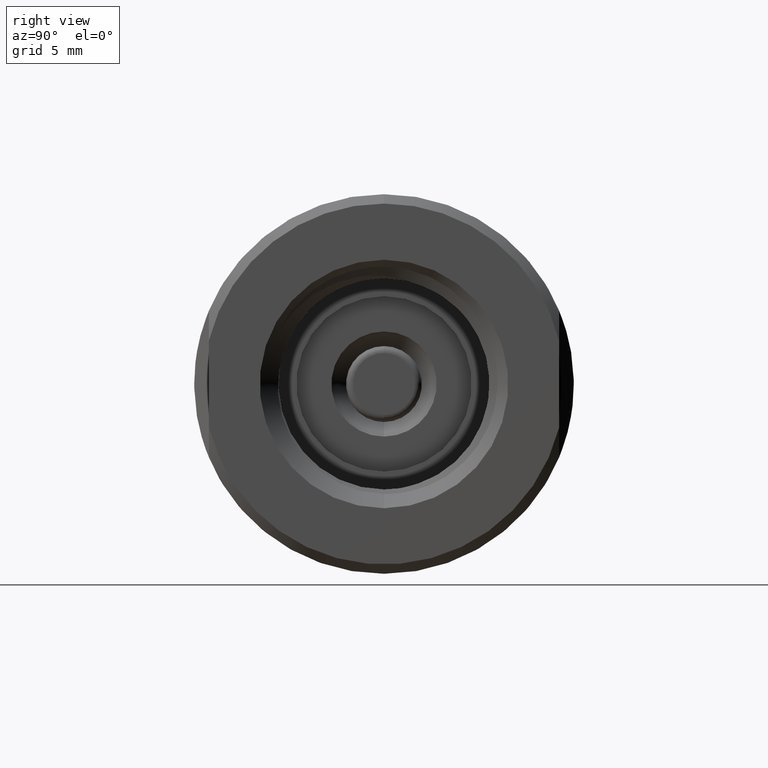
[diagram: clean part render]
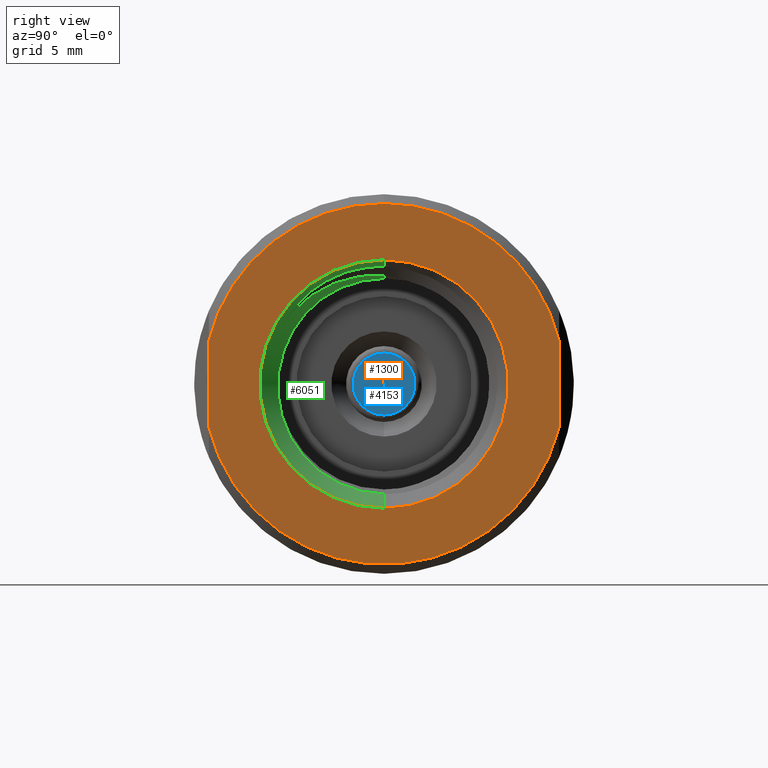
[diagram: same view with three faces highlighted in distinct colors, each labeled with its STEP entity id]
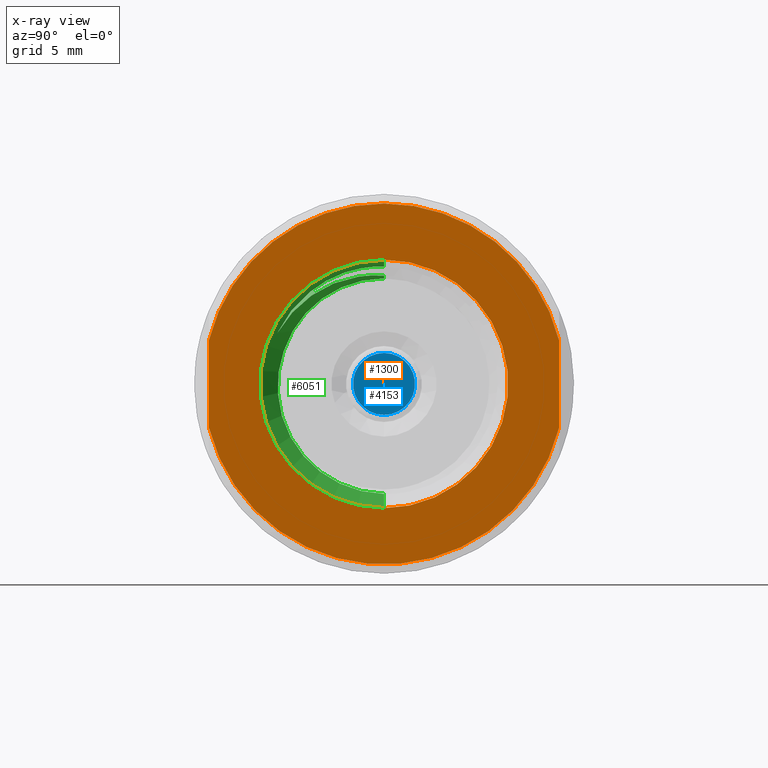
[diagram: x-ray of the same camera — body ghosted, the three highlighted faces saturated]
A machine part, right view with three faces highlighted in distinct colors.
The next image is the same camera in x-ray (body ghosted, the three faces saturated) — at least one of them is partly hidden behind the body in this view.
Their STEP definitions:

[orange] entity #1300 — the highlighted planar face has unit normal (1, 0, 0).
#66 = AXIS2_PLACEMENT_3D ( 'NONE', #7176, #10315, #5440 ) ;
#364 = EDGE_CURVE ( 'NONE', #2981, #3507, #4209, .T. ) ;
#480 = ORIENTED_EDGE ( 'NONE', *, *, #9470, .T. ) ;
#559 = DIRECTION ( 'NONE',  ( 1.000000000000000000, 0.0000000000000000000, 0.0000000000000000000 ) ) ;
#775 = DIRECTION ( 'NONE',  ( 0.0000000000000000000, 0.0000000000000000000, 1.000000000000000000 ) ) ;
#866 = EDGE_CURVE ( 'NONE', #6325, #2981, #7161, .T. ) ;
#963 = CIRCLE ( 'NONE', #6632, 0.2656250000000001665 ) ;
#1066 = VERTEX_POINT ( 'NONE', #4371 ) ;
#1202 = CARTESIAN_POINT ( 'NONE',  ( 0.8119999999999999440, 3.252968060235159152E-17, 0.2656250000000001665 ) ) ;
#1255 = VECTOR ( 'NONE', #2933, 39.37007874015748143 ) ;
#1300 = ADVANCED_FACE ( 'NONE', ( #4642, #4762 ), #6388, .T. ) ;
#1375 = CARTESIAN_POINT ( 'NONE',  ( 0.8119999999999999440, -0.3742499999999999716, -0.4057499999999999440 ) ) ;
#2190 = LINE ( 'NONE', #1375, #8658 ) ;
#2267 = CARTESIAN_POINT ( 'NONE',  ( 0.8119999999999999440, 0.0000000000000000000, 0.0000000000000000000 ) ) ;
#2716 = DIRECTION ( 'NONE',  ( -1.000000000000000000, -0.0000000000000000000, -0.0000000000000000000 ) ) ;
#2933 = DIRECTION ( 'NONE',  ( -0.0000000000000000000, -0.0000000000000000000, 1.000000000000000000 ) ) ;
#2981 = VERTEX_POINT ( 'NONE', #6522 ) ;
#3097 = ORIENTED_EDGE ( 'NONE', *, *, #866, .F. ) ;
#3370 = AXIS2_PLACEMENT_3D ( 'NONE', #2267, #5544, #8838 ) ;
#3507 = VERTEX_POINT ( 'NONE', #10639 ) ;
#3600 = ORIENTED_EDGE ( 'NONE', *, *, #9549, .T. ) ;
#3702 = AXIS2_PLACEMENT_3D ( 'NONE', #7946, #559, #7142 ) ;
#4093 = EDGE_CURVE ( 'NONE', #10196, #6325, #2190, .T. ) ;
#4169 = CARTESIAN_POINT ( 'NONE',  ( 0.8119999999999999440, -0.3742499999999999716, -0.09348796714016190113 ) ) ;
#4209 = CIRCLE ( 'NONE', #4730, 0.3857499999999999818 ) ;
#4371 = CARTESIAN_POINT ( 'NONE',  ( 0.8119999999999999440, 0.0000000000000000000, -0.2656250000000001665 ) ) ;
#4642 = FACE_OUTER_BOUND ( 'NONE', #7517, .T. ) ;
#4644 = DIRECTION ( 'NONE',  ( -0.0000000000000000000, -0.0000000000000000000, 1.000000000000000000 ) ) ;
#4730 = AXIS2_PLACEMENT_3D ( 'NONE', #8307, #4851, #775 ) ;
#4745 = ORIENTED_EDGE ( 'NONE', *, *, #364, .F. ) ;
#4762 = FACE_BOUND ( 'NONE', #7240, .T. ) ;
#4851 = DIRECTION ( 'NONE',  ( -1.000000000000000000, -0.0000000000000000000, -0.0000000000000000000 ) ) ;
#5250 = AXIS2_PLACEMENT_3D ( 'NONE', #6803, #2716, #10168 ) ;
#5440 = DIRECTION ( 'NONE',  ( 0.0000000000000000000, 0.0000000000000000000, 1.000000000000000000 ) ) ;
#5544 = DIRECTION ( 'NONE',  ( -1.000000000000000000, -0.0000000000000000000, -0.0000000000000000000 ) ) ;
#5764 = ORIENTED_EDGE ( 'NONE', *, *, #6824, .T. ) ;
#5893 = DIRECTION ( 'NONE',  ( -1.000000000000000000, -0.0000000000000000000, -0.0000000000000000000 ) ) ;
#5948 = CARTESIAN_POINT ( 'NONE',  ( 0.8119999999999999440, 0.3742499999999999716, -0.09348796714016192888 ) ) ;
#6128 = EDGE_CURVE ( 'NONE', #7010, #10196, #10238, .T. ) ;
#6325 = VERTEX_POINT ( 'NONE', #9377 ) ;
#6388 = PLANE ( 'NONE',  #3702 ) ;
#6522 = CARTESIAN_POINT ( 'NONE',  ( 0.8119999999999999440, 0.0000000000000000000, 0.3857499999999999818 ) ) ;
#6632 = AXIS2_PLACEMENT_3D ( 'NONE', #8326, #5893, #7471 ) ;
#6676 = ORIENTED_EDGE ( 'NONE', *, *, #6128, .F. ) ;
#6803 = CARTESIAN_POINT ( 'NONE',  ( 0.8119999999999999440, 0.0000000000000000000, 0.0000000000000000000 ) ) ;
#6824 = EDGE_CURVE ( 'NONE', #7010, #3507, #7787, .T. ) ;
#7010 = VERTEX_POINT ( 'NONE', #5948 ) ;
#7141 = VERTEX_POINT ( 'NONE', #1202 ) ;
#7142 = DIRECTION ( 'NONE',  ( 0.0000000000000000000, 0.0000000000000000000, -1.000000000000000000 ) ) ;
#7161 = CIRCLE ( 'NONE', #3370, 0.3857499999999999818 ) ;
#7176 = CARTESIAN_POINT ( 'NONE',  ( 0.8119999999999999440, 0.0000000000000000000, 0.0000000000000000000 ) ) ;
#7240 = EDGE_LOOP ( 'NONE', ( #3600, #480 ) ) ;
#7471 = DIRECTION ( 'NONE',  ( 0.0000000000000000000, 0.0000000000000000000, 1.000000000000000000 ) ) ;
#7517 = EDGE_LOOP ( 'NONE', ( #5764, #4745, #3097, #9996, #6676 ) ) ;
#7787 = LINE ( 'NONE', #10233, #1255 ) ;
#7946 = CARTESIAN_POINT ( 'NONE',  ( 0.8119999999999999440, 0.0000000000000000000, 0.0000000000000000000 ) ) ;
#8307 = CARTESIAN_POINT ( 'NONE',  ( 0.8119999999999999440, 0.0000000000000000000, 0.0000000000000000000 ) ) ;
#8326 = CARTESIAN_POINT ( 'NONE',  ( 0.8119999999999999440, 0.0000000000000000000, 0.0000000000000000000 ) ) ;
#8658 = VECTOR ( 'NONE', #4644, 39.37007874015748143 ) ;
#8838 = DIRECTION ( 'NONE',  ( 0.0000000000000000000, 0.0000000000000000000, 1.000000000000000000 ) ) ;
#9377 = CARTESIAN_POINT ( 'NONE',  ( 0.8119999999999999440, -0.3742499999999999716, 0.09348796714016192888 ) ) ;
#9470 = EDGE_CURVE ( 'NONE', #7141, #1066, #963, .T. ) ;
#9549 = EDGE_CURVE ( 'NONE', #1066, #7141, #9763, .T. ) ;
#9763 = CIRCLE ( 'NONE', #5250, 0.2656250000000001665 ) ;
#9996 = ORIENTED_EDGE ( 'NONE', *, *, #4093, .F. ) ;
#10168 = DIRECTION ( 'NONE',  ( 0.0000000000000000000, 0.0000000000000000000, 1.000000000000000000 ) ) ;
#10196 = VERTEX_POINT ( 'NONE', #4169 ) ;
#10233 = CARTESIAN_POINT ( 'NONE',  ( 0.8119999999999999440, 0.3742499999999999716, -0.4057499999999999440 ) ) ;
#10238 = CIRCLE ( 'NONE', #66, 0.3857499999999999818 ) ;
#10315 = DIRECTION ( 'NONE',  ( -1.000000000000000000, -0.0000000000000000000, -0.0000000000000000000 ) ) ;
#10639 = CARTESIAN_POINT ( 'NONE',  ( 0.8119999999999999440, 0.3742499999999999716, 0.09348796714016191500 ) ) ;

[blue] entity #4153 — the highlighted planar face has unit normal (-1, 0, -0).
#30 = FACE_OUTER_BOUND ( 'NONE', #1579, .T. ) ;
#262 = CIRCLE ( 'NONE', #1672, 0.06628679656440368551 ) ;
#774 = ORIENTED_EDGE ( 'NONE', *, *, #1594, .F. ) ;
#1579 = EDGE_LOOP ( 'NONE', ( #5712, #774 ) ) ;
#1594 = EDGE_CURVE ( 'NONE', #4928, #4003, #262, .T. ) ;
#1672 = AXIS2_PLACEMENT_3D ( 'NONE', #10086, #5268, #9324 ) ;
#2572 = DIRECTION ( 'NONE',  ( -1.000000000000000000, -0.0000000000000000000, -0.0000000000000000000 ) ) ;
#3314 = PLANE ( 'NONE',  #10408 ) ;
#3626 = CARTESIAN_POINT ( 'NONE',  ( 0.2400000000000000744, 0.0000000000000000000, 0.06628679656440368551 ) ) ;
#3680 = CARTESIAN_POINT ( 'NONE',  ( 0.2400000000000000744, 8.117791323832874141E-18, -0.06628679656440368551 ) ) ;
#4003 = VERTEX_POINT ( 'NONE', #3626 ) ;
#4153 = ADVANCED_FACE ( 'NONE', ( #30 ), #3314, .F. ) ;
#4925 = DIRECTION ( 'NONE',  ( -0.0000000000000000000, 0.0000000000000000000, 1.000000000000000000 ) ) ;
#4928 = VERTEX_POINT ( 'NONE', #3680 ) ;
#5268 = DIRECTION ( 'NONE',  ( -1.000000000000000000, -0.0000000000000000000, -0.0000000000000000000 ) ) ;
#5561 = DIRECTION ( 'NONE',  ( 0.0000000000000000000, 0.0000000000000000000, 1.000000000000000000 ) ) ;
#5617 = EDGE_CURVE ( 'NONE', #4003, #4928, #7251, .T. ) ;
#5712 = ORIENTED_EDGE ( 'NONE', *, *, #5617, .F. ) ;
#5740 = CARTESIAN_POINT ( 'NONE',  ( 0.2400000000000000466, 0.06628679656440368551, 0.0000000000000000000 ) ) ;
#6667 = CARTESIAN_POINT ( 'NONE',  ( 0.2400000000000000744, 0.0000000000000000000, 0.0000000000000000000 ) ) ;
#7251 = CIRCLE ( 'NONE', #8614, 0.06628679656440368551 ) ;
#8614 = AXIS2_PLACEMENT_3D ( 'NONE', #6667, #2572, #5561 ) ;
#9324 = DIRECTION ( 'NONE',  ( 0.0000000000000000000, 0.0000000000000000000, 1.000000000000000000 ) ) ;
#10086 = CARTESIAN_POINT ( 'NONE',  ( 0.2400000000000000744, 0.0000000000000000000, 0.0000000000000000000 ) ) ;
#10408 = AXIS2_PLACEMENT_3D ( 'NONE', #5740, #10681, #4925 ) ;
#10681 = DIRECTION ( 'NONE',  ( -1.000000000000000000, 0.0000000000000000000, -0.0000000000000000000 ) ) ;

[green] entity #6051 — the highlighted conical surface has half-angle 45 deg.
#2 = CARTESIAN_POINT ( 'NONE',  ( 0.7805556300412790360, -0.04498452090625133099, -0.2299985352911203540 ) ) ;
#69 = ORIENTED_EDGE ( 'NONE', *, *, #10105, .T. ) ;
#105 = CARTESIAN_POINT ( 'NONE',  ( 0.7990632937499999588, -0.08407650426676809008, 0.2382908206972448595 ) ) ;
#191 = CARTESIAN_POINT ( 'NONE',  ( 0.7990632937499996258, -0.1934957492969427983, 0.1658530537256991677 ) ) ;
#193 = CARTESIAN_POINT ( 'NONE',  ( 0.7824227025634746813, -0.05680386948657008273, 0.2293934257942849830 ) ) ;
#243 = CARTESIAN_POINT ( 'NONE',  ( 0.7990632937499998478, -0.2136355203679278780, 0.1389648385404480824 ) ) ;
#305 = CARTESIAN_POINT ( 'NONE',  ( 0.7896852969209323669, -0.1416780881539063952, 0.1981338047775613453 ) ) ;
#354 = CARTESIAN_POINT ( 'NONE',  ( 0.7870059796297267374, -0.1115232542359631818, 0.2144410660426040727 ) ) ;
#760 = CARTESIAN_POINT ( 'NONE',  ( 0.7811385220460871359, -0.01800848180125200898, -0.2342471567218012696 ) ) ;
#911 = CARTESIAN_POINT ( 'NONE',  ( 0.7807538000659930422, -0.03596837756054110241, -0.2317796848336532989 ) ) ;
#1019 = VERTEX_POINT ( 'NONE', #5192 ) ;
#1039 = EDGE_CURVE ( 'NONE', #4254, #1066, #5247, .T. ) ;
#1060 = EDGE_CURVE ( 'NONE', #7990, #1019, #10174, .T. ) ;
#1066 = VERTEX_POINT ( 'NONE', #4371 ) ;
#1067 = CARTESIAN_POINT ( 'NONE',  ( 0.7905618706404917706, -0.1513356395702615542, 0.1919695273890668907 ) ) ;
#1150 = CARTESIAN_POINT ( 'NONE',  ( 0.7815096189432332308, -3.967213306525164175E-15, -0.2351346189432335088 ) ) ;
#1202 = CARTESIAN_POINT ( 'NONE',  ( 0.8119999999999999440, 3.252968060235159152E-17, 0.2656250000000001665 ) ) ;
#1384 = CARTESIAN_POINT ( 'NONE',  ( 0.7990632937499999588, -0.2279481215150217233, 0.1090459889040365365 ) ) ;
#1589 = CARTESIAN_POINT ( 'NONE',  ( 0.7720000000000000195, 0.0000000000000000000, 0.0000000000000000000 ) ) ;
#1677 = DIRECTION ( 'NONE',  ( 0.7071067811865472397, 8.659560562354936556E-17, 0.7071067811865477948 ) ) ;
#1769 = CARTESIAN_POINT ( 'NONE',  ( 0.7751960981024543784, -0.2172889835147260584, -0.07229385120920114871 ) ) ;
#1923 = CARTESIAN_POINT ( 'NONE',  ( 0.7851918553818114654, -0.09030376725242793279, 0.2222537784552596485 ) ) ;
#1974 = CARTESIAN_POINT ( 'NONE',  ( 0.7787941536203475401, -0.01140287263148449630, 0.2324191536203473463 ) ) ;
#1975 = B_SPLINE_CURVE_WITH_KNOTS ( 'NONE', 3,
 ( #6063, #243, #191, #10076, #5909, #9316, #3427, #6766 ),
 .UNSPECIFIED., .F., .F.,
 ( 4, 2, 2, 4 ),
 ( 7.835714449375355692E-17, 0.002526480793388749015, 0.003789721190083085792, 0.005052961586777421701 ),
 .UNSPECIFIED. ) ;
#1988 = VECTOR ( 'NONE', #6863, 39.37007874015748143 ) ;
#2277 = ORIENTED_EDGE ( 'NONE', *, *, #9549, .F. ) ;
#2375 = CARTESIAN_POINT ( 'NONE',  ( 0.7777781127310734455, -0.1556972543523094943, -0.1714264763665983293 ) ) ;
#2481 = AXIS2_PLACEMENT_3D ( 'NONE', #8092, #2905, #5495 ) ;
#2702 = EDGE_CURVE ( 'NONE', #2851, #10509, #1975, .T. ) ;
#2716 = DIRECTION ( 'NONE',  ( -1.000000000000000000, -0.0000000000000000000, -0.0000000000000000000 ) ) ;
#2851 = VERTEX_POINT ( 'NONE', #1384 ) ;
#2861 = ORIENTED_EDGE ( 'NONE', *, *, #7763, .T. ) ;
#2905 = DIRECTION ( 'NONE',  ( 1.000000000000000000, 0.0000000000000000000, 0.0000000000000000000 ) ) ;
#3024 = EDGE_CURVE ( 'NONE', #4254, #7764, #6861, .T. ) ;
#3086 = EDGE_CURVE ( 'NONE', #1019, #2851, #6095, .T. ) ;
#3172 = CARTESIAN_POINT ( 'NONE',  ( 0.7719999999999997975, -0.2144472891829267980, 0.07013558859162886960 ) ) ;
#3234 = ORIENTED_EDGE ( 'NONE', *, *, #3086, .T. ) ;
#3287 = CARTESIAN_POINT ( 'NONE',  ( 0.7789578593378860827, -0.1122212167723315168, -0.2039202867966781740 ) ) ;
#3333 = CARTESIAN_POINT ( 'NONE',  ( 0.7772112384856526557, -0.1743183767203321521, -0.1515949905640479045 ) ) ;
#3380 = CARTESIAN_POINT ( 'NONE',  ( 0.8119999999999999440, 3.252968060235159152E-17, 0.2656250000000001665 ) ) ;
#3385 = CARTESIAN_POINT ( 'NONE',  ( 0.7728231071987556877, -0.2244138106830229906, 0.03525798444140750693 ) ) ;
#3427 = CARTESIAN_POINT ( 'NONE',  ( 0.7990632937499999588, -0.09971468365738292428, 0.2327731786314413132 ) ) ;
#3436 = CARTESIAN_POINT ( 'NONE',  ( 0.7973589838486344616, -6.336195174398532504E-13, 0.2509839838486346286 ) ) ;
#3448 = EDGE_LOOP ( 'NONE', ( #9657, #7124, #3234, #4841, #69, #2861, #2277, #6273, #3590 ) ) ;
#3486 = CARTESIAN_POINT ( 'NONE',  ( 0.7976292508317774921, -0.01418212926947711415, 0.2512542508317418544 ) ) ;
#3588 = CARTESIAN_POINT ( 'NONE',  ( 0.7955957668530119209, -0.2019221485152952467, 0.1465193883137075881 ) ) ;
#3590 = ORIENTED_EDGE ( 'NONE', *, *, #3024, .T. ) ;
#3624 = CARTESIAN_POINT ( 'NONE',  ( 0.8119999999999999440, 3.252968060235159152E-17, 0.2656250000000001665 ) ) ;
#3909 = B_SPLINE_CURVE_WITH_KNOTS ( 'NONE', 3,
 ( #105, #4953, #5111, #9067, #3486, #3436 ),
 .UNSPECIFIED., .F., .F.,
 ( 4, 2, 4 ),
 ( 4.507778338167748652E-17, 0.001081903063913679198, 0.002163806127827313294 ),
 .UNSPECIFIED. ) ;
#4036 = CARTESIAN_POINT ( 'NONE',  ( 0.7754030200675708917, -0.2144202887096039734, -0.08099768611770889748 ) ) ;
#4103 = CARTESIAN_POINT ( 'NONE',  ( 0.7990632937499999588, -0.08407650426676809008, 0.2382908206972448595 ) ) ;
#4136 = CARTESIAN_POINT ( 'NONE',  ( 0.7783578305614057280, -0.1350149470285869346, -0.1888629114149175947 ) ) ;
#4182 = CARTESIAN_POINT ( 'NONE',  ( 0.7745874515539107330, -0.2237178741658923664, -0.04596352235974386635 ) ) ;
#4233 = CARTESIAN_POINT ( 'NONE',  ( 0.7981907166223538574, -0.2222291740641921254, 0.1189788008652598178 ) ) ;
#4254 = VERTEX_POINT ( 'NONE', #1150 ) ;
#4371 = CARTESIAN_POINT ( 'NONE',  ( 0.8119999999999999440, 0.0000000000000000000, -0.2656250000000001665 ) ) ;
#4771 = CARTESIAN_POINT ( 'NONE',  ( 0.7720000000000000195, 3.008038700405689053E-17, 0.2256250000000001588 ) ) ;
#4841 = ORIENTED_EDGE ( 'NONE', *, *, #2702, .T. ) ;
#4953 = CARTESIAN_POINT ( 'NONE',  ( 0.7987703623066642056, -0.07047657437850005091, 0.2427786738740789763 ) ) ;
#5111 = CARTESIAN_POINT ( 'NONE',  ( 0.7984815397031211903, -0.05665131411259501093, 0.2460691444897273039 ) ) ;
#5192 = CARTESIAN_POINT ( 'NONE',  ( 0.7779150638325641465, 0.0000000000000000000, 0.2315400638325643690 ) ) ;
#5247 = LINE ( 'NONE', #9522, #10451 ) ;
#5250 = AXIS2_PLACEMENT_3D ( 'NONE', #6803, #2716, #10168 ) ;
#5495 = DIRECTION ( 'NONE',  ( 0.0000000000000000000, 0.0000000000000000000, -1.000000000000000000 ) ) ;
#5627 = DIRECTION ( 'NONE',  ( 0.0000000000000000000, 0.0000000000000000000, 1.000000000000000000 ) ) ;
#5639 = VERTEX_POINT ( 'NONE', #10553 ) ;
#5762 = CARTESIAN_POINT ( 'NONE',  ( 0.7813262971351848662, -0.009012248209545955721, -0.2349512971351852830 ) ) ;
#5776 = CIRCLE ( 'NONE', #8200, 0.2256250000000001588 ) ;
#5816 = CARTESIAN_POINT ( 'NONE',  ( 0.7795615824306487696, -0.08815468294197646715, -0.2166423959301288504 ) ) ;
#5909 = CARTESIAN_POINT ( 'NONE',  ( 0.7990632937500002919, -0.1431938887252694470, 0.2088576136017793738 ) ) ;
#5969 = CARTESIAN_POINT ( 'NONE',  ( 0.7922518752504807971, -0.1695154050277040692, 0.1784587142679214533 ) ) ;
#6051 = ADVANCED_FACE ( 'NONE', ( #6311 ), #10692, .F. ) ;
#6063 = CARTESIAN_POINT ( 'NONE',  ( 0.7990632937499999588, -0.2279481215150217233, 0.1090459889040365365 ) ) ;
#6066 = CARTESIAN_POINT ( 'NONE',  ( 0.7779150638325641465, 0.0000000000000000000, 0.2315400638325643690 ) ) ;
#6095 = B_SPLINE_CURVE_WITH_KNOTS ( 'NONE', 3,
 ( #6066, #1974, #6825, #9373, #193, #1923, #354, #305, #1067, #5969, #7741, #8450, #3588, #6768, #4233, #10079 ),
 .UNSPECIFIED., .F., .F.,
 ( 4, 2, 2, 2, 2, 2, 2, 4 ),
 ( 0.001840068192699885171, 0.002707008220260347618, 0.003573948247820809849, 0.005307828302941733876, 0.006174768330502195673, 0.007041708358062657470, 0.007908648385623121002, 0.008775588413183581932 ),
 .UNSPECIFIED. ) ;
#6273 = ORIENTED_EDGE ( 'NONE', *, *, #1039, .F. ) ;
#6311 = FACE_OUTER_BOUND ( 'NONE', #3448, .T. ) ;
#6621 = CARTESIAN_POINT ( 'NONE',  ( 0.7781624671163696050, -0.1421357920105186523, -0.1833142595993296764 ) ) ;
#6674 = CARTESIAN_POINT ( 'NONE',  ( 0.7724185055673081779, -0.2205314068212775591, 0.05287905392363922985 ) ) ;
#6766 = CARTESIAN_POINT ( 'NONE',  ( 0.7990632937499999588, -0.08407650426676809008, 0.2382908206972448595 ) ) ;
#6768 = CARTESIAN_POINT ( 'NONE',  ( 0.7973226527177366130, -0.2158769126251773585, 0.1284576879054571963 ) ) ;
#6803 = CARTESIAN_POINT ( 'NONE',  ( 0.8119999999999999440, 0.0000000000000000000, 0.0000000000000000000 ) ) ;
#6825 = CARTESIAN_POINT ( 'NONE',  ( 0.7796872629521226505, -0.02277049338399150802, 0.2324743061524757459 ) ) ;
#6861 = B_SPLINE_CURVE_WITH_KNOTS ( 'NONE', 3,
 ( #7397, #5762, #760, #911, #2, #9777, #5816, #3287, #9878, #4136, #6621, #2375, #7341, #3333, #9930, #8297, #10588, #4036, #1769, #9110, #4182, #10653, #7490, #3385, #6674, #9155 ),
 .UNSPECIFIED., .F., .F.,
 ( 4, 2, 2, 2, 2, 2, 2, 2, 2, 2, 2, 2, 4 ),
 ( 0.02157714964423921439, 0.02226754478358077341, 0.02295793992292233243, 0.02433873020160544701, 0.02502912534094700603, 0.02571952048028856505, 0.02640991561963012407, 0.02710031075897167963, 0.02848110103765479767, 0.02917149617699636016, 0.02986189131633791918, 0.03124268159502104070, 0.03262347187370415874 ),
 .UNSPECIFIED. ) ;
#6863 = DIRECTION ( 'NONE',  ( 0.7071067811865472397, 8.659560562354936556E-17, 0.7071067811865477948 ) ) ;
#7124 = ORIENTED_EDGE ( 'NONE', *, *, #1060, .T. ) ;
#7141 = VERTEX_POINT ( 'NONE', #1202 ) ;
#7302 = DIRECTION ( 'NONE',  ( -1.000000000000000000, -0.0000000000000000000, -0.0000000000000000000 ) ) ;
#7341 = CARTESIAN_POINT ( 'NONE',  ( 0.7775920292220070973, -0.1621398409608922342, -0.1650895369299558713 ) ) ;
#7397 = CARTESIAN_POINT ( 'NONE',  ( 0.7815096189432332308, -3.967213306525164175E-15, -0.2351346189432335088 ) ) ;
#7490 = CARTESIAN_POINT ( 'NONE',  ( 0.7736062614581600272, -0.2279463001749664763, -0.0006848785715596091960 ) ) ;
#7741 = CARTESIAN_POINT ( 'NONE',  ( 0.7930584814324520559, -0.1780903620075702520, 0.1710699520045887434 ) ) ;
#7763 = EDGE_CURVE ( 'NONE', #5639, #7141, #9000, .T. ) ;
#7764 = VERTEX_POINT ( 'NONE', #3172 ) ;
#7838 = DIRECTION ( 'NONE',  ( 0.7071067811865472397, 0.0000000000000000000, -0.7071067811865477948 ) ) ;
#7990 = VERTEX_POINT ( 'NONE', #4771 ) ;
#8092 = CARTESIAN_POINT ( 'NONE',  ( 0.8119999999999999440, 0.0000000000000000000, 0.0000000000000000000 ) ) ;
#8200 = AXIS2_PLACEMENT_3D ( 'NONE', #1589, #7302, #5627 ) ;
#8297 = CARTESIAN_POINT ( 'NONE',  ( 0.7764224616653795374, -0.1957287973760878097, -0.1222292068754699534 ) ) ;
#8450 = CARTESIAN_POINT ( 'NONE',  ( 0.7947336971226592883, -0.1942816626068225028, 0.1551291188603819982 ) ) ;
#8864 = VECTOR ( 'NONE', #1677, 39.37007874015748143 ) ;
#9000 = LINE ( 'NONE', #3380, #8864 ) ;
#9067 = CARTESIAN_POINT ( 'NONE',  ( 0.7979120312450727059, -0.02856107247740247157, 0.2503134657305400856 ) ) ;
#9110 = CARTESIAN_POINT ( 'NONE',  ( 0.7747889807721299871, -0.2219262839085255901, -0.05480400957440507287 ) ) ;
#9155 = CARTESIAN_POINT ( 'NONE',  ( 0.7719999999999997975, -0.2144472891829267980, 0.07013558859162886960 ) ) ;
#9316 = CARTESIAN_POINT ( 'NONE',  ( 0.7990632937500004029, -0.1146904491666303066, 0.2257700011021207265 ) ) ;
#9373 = CARTESIAN_POINT ( 'NONE',  ( 0.7814986958020917474, -0.04543680640318113056, 0.2309693384362945523 ) ) ;
#9522 = CARTESIAN_POINT ( 'NONE',  ( 0.8119999999999999440, 0.0000000000000000000, -0.2656250000000001665 ) ) ;
#9549 = EDGE_CURVE ( 'NONE', #1066, #7141, #9763, .T. ) ;
#9657 = ORIENTED_EDGE ( 'NONE', *, *, #9767, .T. ) ;
#9763 = CIRCLE ( 'NONE', #5250, 0.2656250000000001665 ) ;
#9767 = EDGE_CURVE ( 'NONE', #7764, #7990, #5776, .T. ) ;
#9777 = CARTESIAN_POINT ( 'NONE',  ( 0.7799609906127784598, -0.07134584786651279598, -0.2231628295338226042 ) ) ;
#9878 = CARTESIAN_POINT ( 'NONE',  ( 0.7787549591635870572, -0.1200812618644755830, -0.1991560632365357575 ) ) ;
#9930 = CARTESIAN_POINT ( 'NONE',  ( 0.7770145946546419546, -0.1800539232914826482, -0.1444201646552701890 ) ) ;
#10076 = CARTESIAN_POINT ( 'NONE',  ( 0.7990632937499996258, -0.1565454243434103998, 0.1990452726702837682 ) ) ;
#10079 = CARTESIAN_POINT ( 'NONE',  ( 0.7990632937499999588, -0.2279481215150217233, 0.1090459889040365365 ) ) ;
#10105 = EDGE_CURVE ( 'NONE', #10509, #5639, #3909, .T. ) ;
#10168 = DIRECTION ( 'NONE',  ( 0.0000000000000000000, 0.0000000000000000000, 1.000000000000000000 ) ) ;
#10174 = LINE ( 'NONE', #3624, #1988 ) ;
#10451 = VECTOR ( 'NONE', #7838, 39.37007874015748143 ) ;
#10509 = VERTEX_POINT ( 'NONE', #4103 ) ;
#10553 = CARTESIAN_POINT ( 'NONE',  ( 0.7973589838486344616, -6.336195174398532504E-13, 0.2509839838486346286 ) ) ;
#10588 = CARTESIAN_POINT ( 'NONE',  ( 0.7760197009978715421, -0.2043315796808596319, -0.1063799783989950176 ) ) ;
#10653 = CARTESIAN_POINT ( 'NONE',  ( 0.7739889926598795267, -0.2275230962180370131, -0.01915746854435964111 ) ) ;
#10692 = CONICAL_SURFACE ( 'NONE', #2481, 0.2656250000000001665, 0.7853981633974487231 ) ;